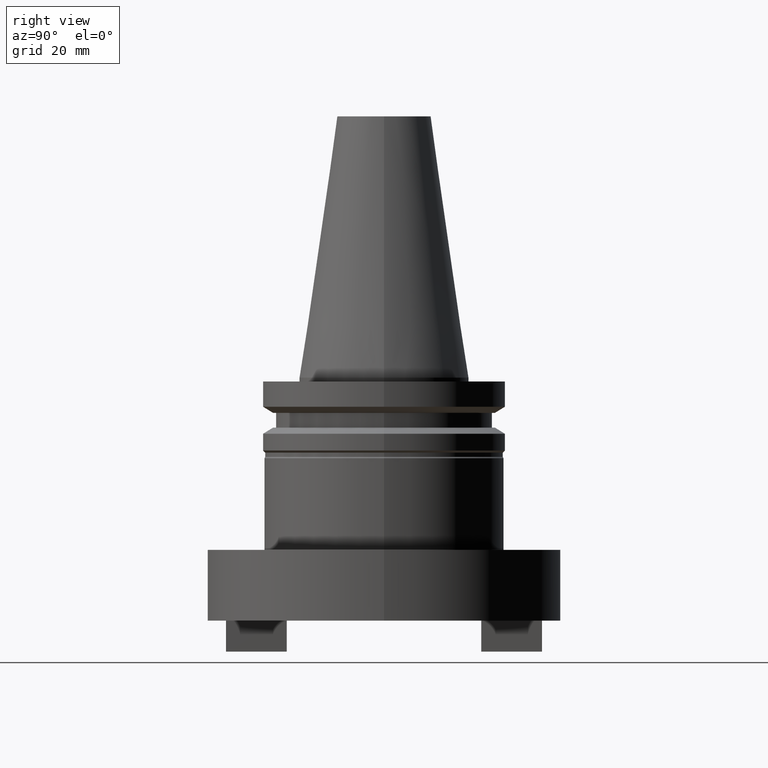
[diagram: clean part render]
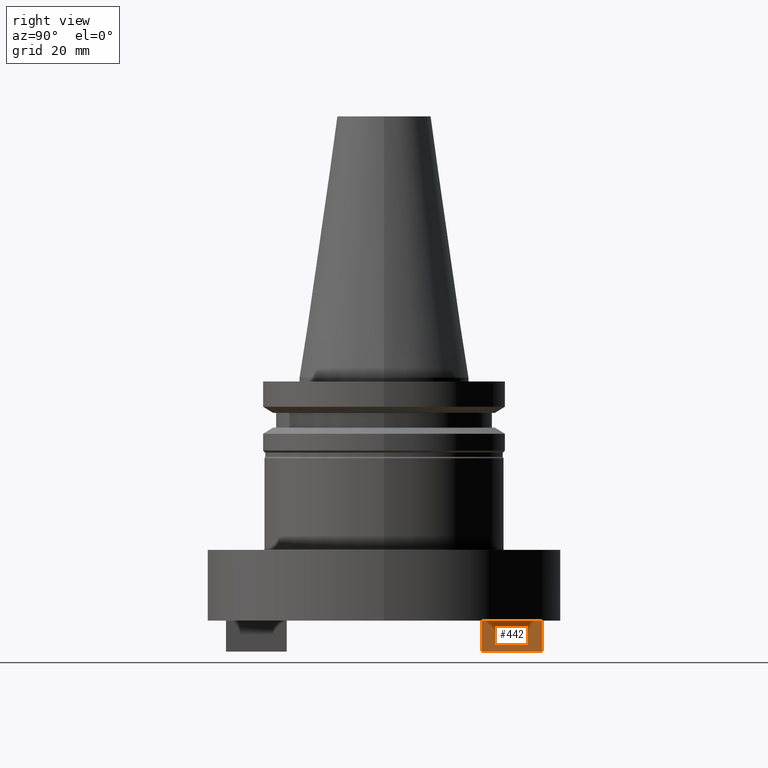
[diagram: same view with one face highlighted and labeled with its STEP entity id]
A machine part, right view. The second image highlights one B-rep face of the part: STEP entity #442.
In plain terms, the highlighted planar face has unit normal (-1, 0, -0).
Its self-contained STEP definition (entity closure, byte-faithful):
#1 = FACE_OUTER_BOUND ( 'NONE', #914, .T. ) ;
#50 = LINE ( 'NONE', #1094, #110 ) ;
#84 = EDGE_CURVE ( 'NONE', #800, #191, #189, .T. ) ;
#110 = VECTOR ( 'NONE', #1031, 1000.000000000000000 ) ;
#171 = EDGE_CURVE ( 'NONE', #191, #298, #1074, .T. ) ;
#182 = DIRECTION ( 'NONE',  ( -0.000000000000000000, -0.000000000000000000, 1.000000000000000000 ) ) ;
#189 = LINE ( 'NONE', #569, #426 ) ;
#191 = VERTEX_POINT ( 'NONE', #782 ) ;
#201 = DIRECTION ( 'NONE',  ( -1.000000000000000000, 0.000000000000000000, -0.000000000000000000 ) ) ;
#215 = DIRECTION ( 'NONE',  ( 0.000000000000000000, -1.000000000000000000, 0.000000000000000000 ) ) ;
#298 = VERTEX_POINT ( 'NONE', #338 ) ;
#338 = CARTESIAN_POINT ( 'NONE',  ( 7.934999999999999609, 25.40500000000000824, -63.50000000000000000 ) ) ;
#394 = AXIS2_PLACEMENT_3D ( 'NONE', #1123, #201, #653 ) ;
#421 = CARTESIAN_POINT ( 'NONE',  ( 7.934999999999999609, 25.40500000000000824, -71.57999999999999829 ) ) ;
#426 = VECTOR ( 'NONE', #182, 1000.000000000000000 ) ;
#442 = ADVANCED_FACE ( 'NONE', ( #1 ), #658, .F. ) ;
#569 = CARTESIAN_POINT ( 'NONE',  ( 7.934999999999999609, 41.27500000000000568, -71.57999999999999829 ) ) ;
#601 = CARTESIAN_POINT ( 'NONE',  ( 7.934999999999999609, 41.27500000000000568, -63.50000000000000000 ) ) ;
#627 = CARTESIAN_POINT ( 'NONE',  ( 7.934999999999999609, 41.27500000000000568, -71.57999999999999829 ) ) ;
#650 = ORIENTED_EDGE ( 'NONE', *, *, #171, .T. ) ;
#653 = DIRECTION ( 'NONE',  ( -0.000000000000000000, 0.000000000000000000, 1.000000000000000000 ) ) ;
#658 = PLANE ( 'NONE',  #394 ) ;
#670 = EDGE_CURVE ( 'NONE', #800, #987, #50, .T. ) ;
#682 = ORIENTED_EDGE ( 'NONE', *, *, #818, .F. ) ;
#730 = ORIENTED_EDGE ( 'NONE', *, *, #670, .F. ) ;
#782 = CARTESIAN_POINT ( 'NONE',  ( 7.934999999999999609, 41.27500000000000568, -63.50000000000000000 ) ) ;
#800 = VERTEX_POINT ( 'NONE', #627 ) ;
#818 = EDGE_CURVE ( 'NONE', #987, #298, #1020, .T. ) ;
#829 = VECTOR ( 'NONE', #906, 1000.000000000000000 ) ;
#855 = VECTOR ( 'NONE', #215, 1000.000000000000000 ) ;
#906 = DIRECTION ( 'NONE',  ( -0.000000000000000000, -0.000000000000000000, 1.000000000000000000 ) ) ;
#914 = EDGE_LOOP ( 'NONE', ( #650, #682, #730, #1108 ) ) ;
#987 = VERTEX_POINT ( 'NONE', #1196 ) ;
#1020 = LINE ( 'NONE', #421, #829 ) ;
#1031 = DIRECTION ( 'NONE',  ( 0.000000000000000000, -1.000000000000000000, 0.000000000000000000 ) ) ;
#1074 = LINE ( 'NONE', #601, #855 ) ;
#1094 = CARTESIAN_POINT ( 'NONE',  ( 7.934999999999999609, 41.27500000000000568, -71.57999999999999829 ) ) ;
#1108 = ORIENTED_EDGE ( 'NONE', *, *, #84, .T. ) ;
#1123 = CARTESIAN_POINT ( 'NONE',  ( 7.934999999999999609, 41.27500000000000568, -71.57999999999999829 ) ) ;
#1196 = CARTESIAN_POINT ( 'NONE',  ( 7.934999999999999609, 25.40500000000000824, -71.57999999999999829 ) ) ;